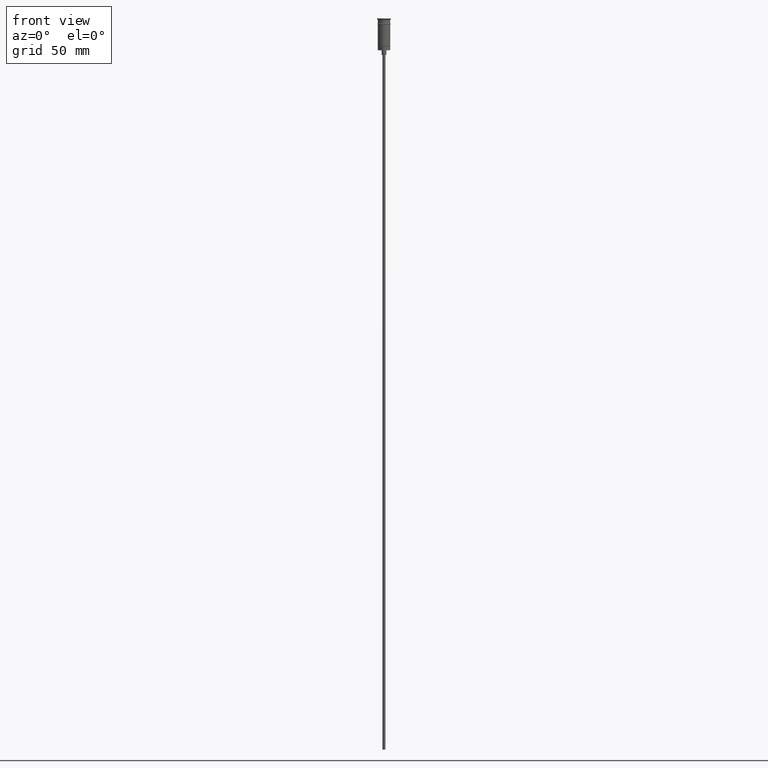
[diagram: clean part render]
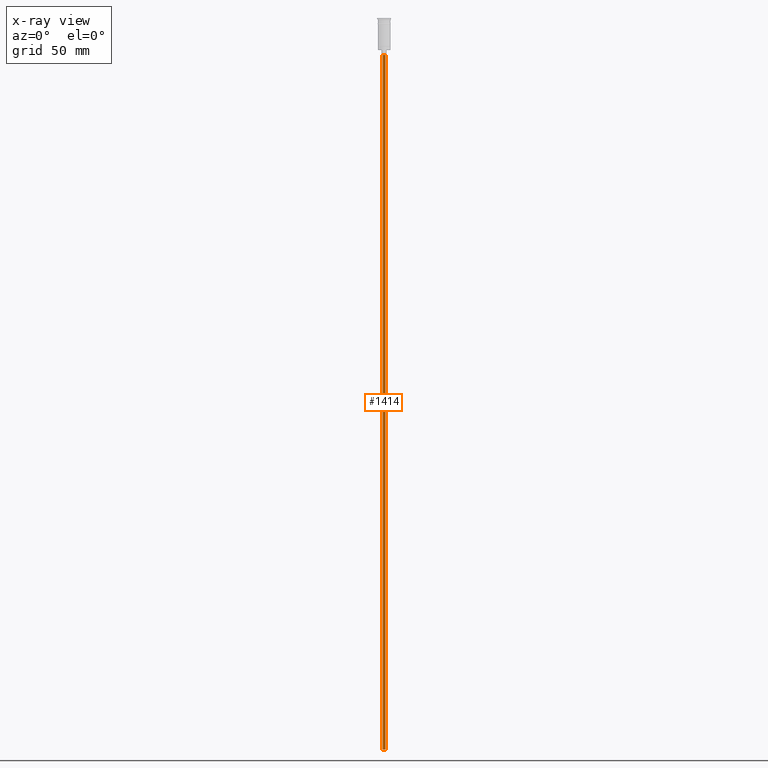
[diagram: x-ray — body ghosted, one internal face saturated and labeled with its STEP entity id]
A machine part, front view, then the same camera in x-ray: the body is ghosted and one INTERNAL B-rep face — a face not visible from any outside direction — is saturated and labeled: STEP entity #1414.
In plain terms, the highlighted cylindrical surface (edge-blend (fillet) strip) has radius 1 mm, axis along (-0, -0, 1).
Its self-contained STEP definition (entity closure, byte-faithful):
#14 = VECTOR ( 'NONE', #152, 1000.000000000000000 ) ;
#31 = VERTEX_POINT ( 'NONE', #897 ) ;
#40 = CIRCLE ( 'NONE', #1118, 0.9999999999999997780 ) ;
#85 = EDGE_CURVE ( 'NONE', #31, #1192, #40, .T. ) ;
#152 = DIRECTION ( 'NONE',  ( -0.000000000000000000, -0.000000000000000000, 1.000000000000000000 ) ) ;
#162 = EDGE_CURVE ( 'NONE', #1317, #1564, #797, .T. ) ;
#166 = LINE ( 'NONE', #275, #14 ) ;
#186 = VECTOR ( 'NONE', #1087, 1000.000000000000000 ) ;
#241 = CARTESIAN_POINT ( 'NONE',  ( 0.9999999999999997780, 0.000000000000000000, -23.49999999999999645 ) ) ;
#249 = ORIENTED_EDGE ( 'NONE', *, *, #162, .F. ) ;
#257 = EDGE_CURVE ( 'NONE', #1317, #31, #166, .T. ) ;
#275 = CARTESIAN_POINT ( 'NONE',  ( -0.9999999999999997780, 1.224646799147352961E-16, -470.5000000000000568 ) ) ;
#413 = CARTESIAN_POINT ( 'NONE',  ( 0.000000000000000000, 0.000000000000000000, -470.5000000000000568 ) ) ;
#700 = AXIS2_PLACEMENT_3D ( 'NONE', #413, #1025, #1387 ) ;
#764 = CARTESIAN_POINT ( 'NONE',  ( 0.000000000000000000, 0.000000000000000000, -23.49999999999999645 ) ) ;
#797 = CIRCLE ( 'NONE', #1028, 0.9999999999999997780 ) ;
#832 = LINE ( 'NONE', #1325, #186 ) ;
#875 = DIRECTION ( 'NONE',  ( -1.000000000000000000, 0.000000000000000000, 0.000000000000000000 ) ) ;
#876 = EDGE_CURVE ( 'NONE', #1564, #1192, #832, .T. ) ;
#897 = CARTESIAN_POINT ( 'NONE',  ( -0.9999999999999997780, 1.224646799147352961E-16, -23.49999999999999645 ) ) ;
#1019 = CYLINDRICAL_SURFACE ( 'NONE', #700, 0.9999999999999997780 ) ;
#1025 = DIRECTION ( 'NONE',  ( -0.000000000000000000, -0.000000000000000000, 1.000000000000000000 ) ) ;
#1028 = AXIS2_PLACEMENT_3D ( 'NONE', #1503, #1443, #1304 ) ;
#1048 = ORIENTED_EDGE ( 'NONE', *, *, #85, .T. ) ;
#1070 = CARTESIAN_POINT ( 'NONE',  ( -0.9999999999999997780, 1.224646799147352961E-16, -470.5000000000000568 ) ) ;
#1087 = DIRECTION ( 'NONE',  ( -0.000000000000000000, -0.000000000000000000, 1.000000000000000000 ) ) ;
#1105 = EDGE_LOOP ( 'NONE', ( #249, #1590, #1048, #1132 ) ) ;
#1118 = AXIS2_PLACEMENT_3D ( 'NONE', #764, #1510, #875 ) ;
#1131 = FACE_OUTER_BOUND ( 'NONE', #1105, .T. ) ;
#1132 = ORIENTED_EDGE ( 'NONE', *, *, #876, .F. ) ;
#1192 = VERTEX_POINT ( 'NONE', #241 ) ;
#1304 = DIRECTION ( 'NONE',  ( -1.000000000000000000, 0.000000000000000000, 0.000000000000000000 ) ) ;
#1317 = VERTEX_POINT ( 'NONE', #1070 ) ;
#1325 = CARTESIAN_POINT ( 'NONE',  ( 0.9999999999999997780, 0.000000000000000000, -470.5000000000000568 ) ) ;
#1387 = DIRECTION ( 'NONE',  ( 1.000000000000000000, 0.000000000000000000, 0.000000000000000000 ) ) ;
#1414 = ADVANCED_FACE ( 'NONE', ( #1131 ), #1019, .T. ) ;
#1443 = DIRECTION ( 'NONE',  ( 0.000000000000000000, 0.000000000000000000, -1.000000000000000000 ) ) ;
#1503 = CARTESIAN_POINT ( 'NONE',  ( 0.000000000000000000, 0.000000000000000000, -470.5000000000000568 ) ) ;
#1510 = DIRECTION ( 'NONE',  ( 0.000000000000000000, 0.000000000000000000, -1.000000000000000000 ) ) ;
#1531 = CARTESIAN_POINT ( 'NONE',  ( 0.9999999999999997780, 0.000000000000000000, -470.5000000000000568 ) ) ;
#1564 = VERTEX_POINT ( 'NONE', #1531 ) ;
#1590 = ORIENTED_EDGE ( 'NONE', *, *, #257, .T. ) ;